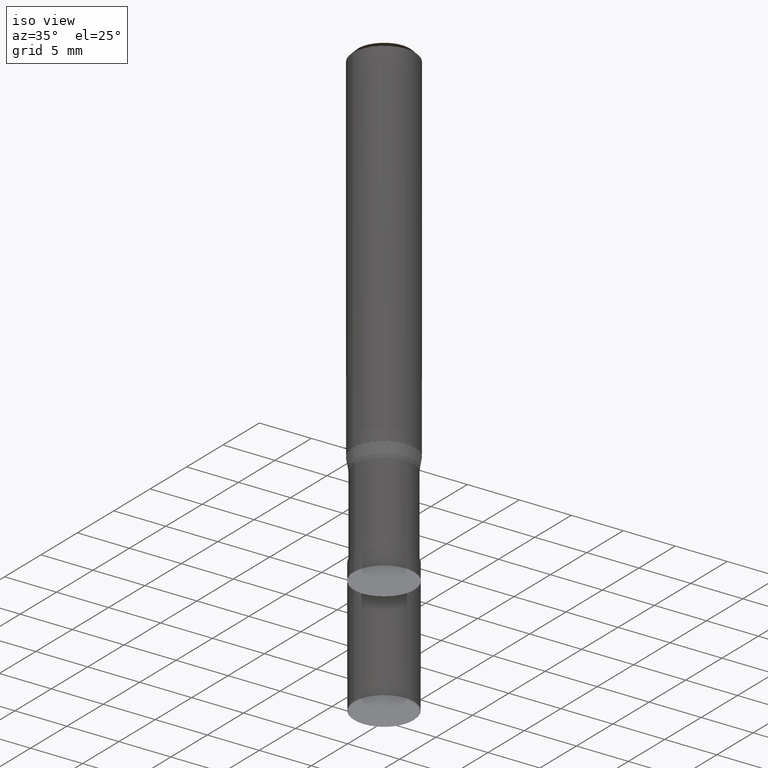
[diagram: clean part render]
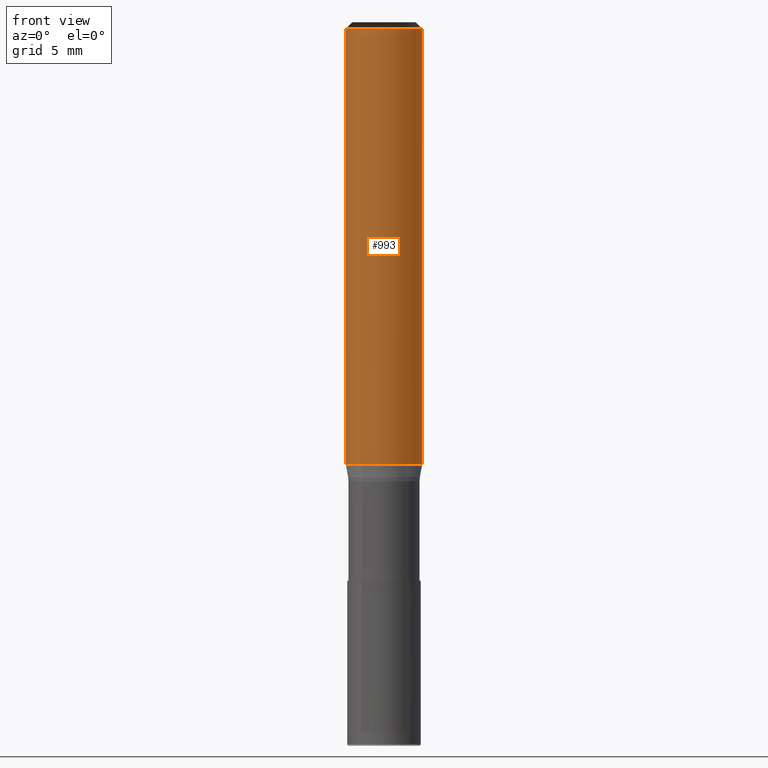
[diagram: tour spotlight — one face highlighted and labeled with its STEP entity id]
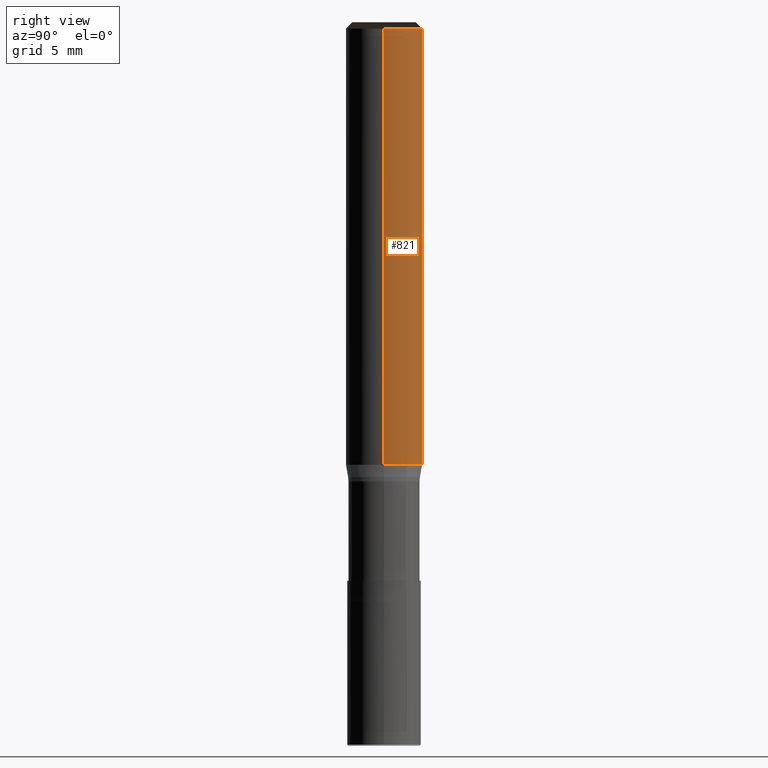
[diagram: tour spotlight — one face highlighted and labeled with its STEP entity id]
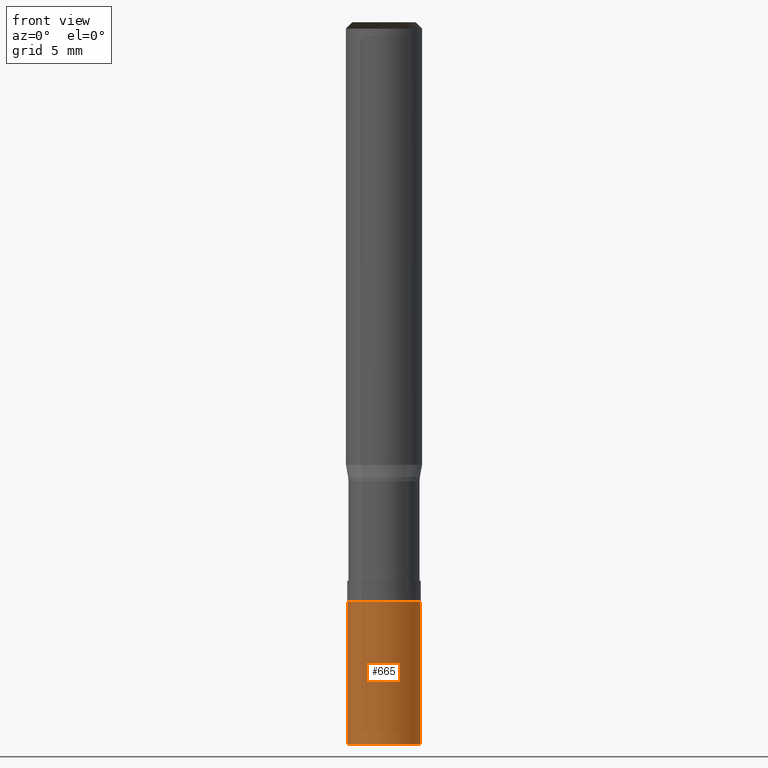
[diagram: tour spotlight — one face highlighted and labeled with its STEP entity id]
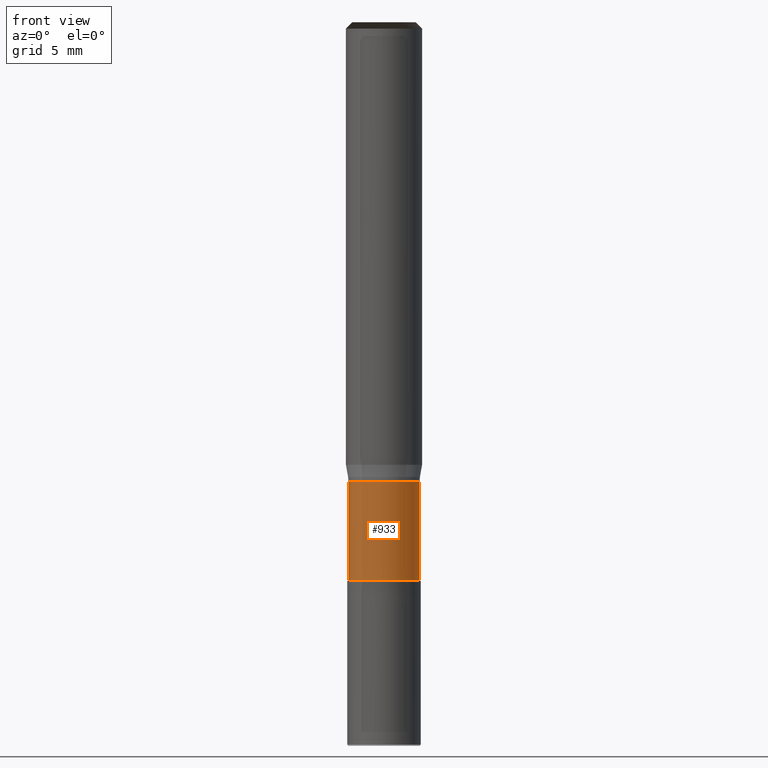
[diagram: tour spotlight — one face highlighted and labeled with its STEP entity id]
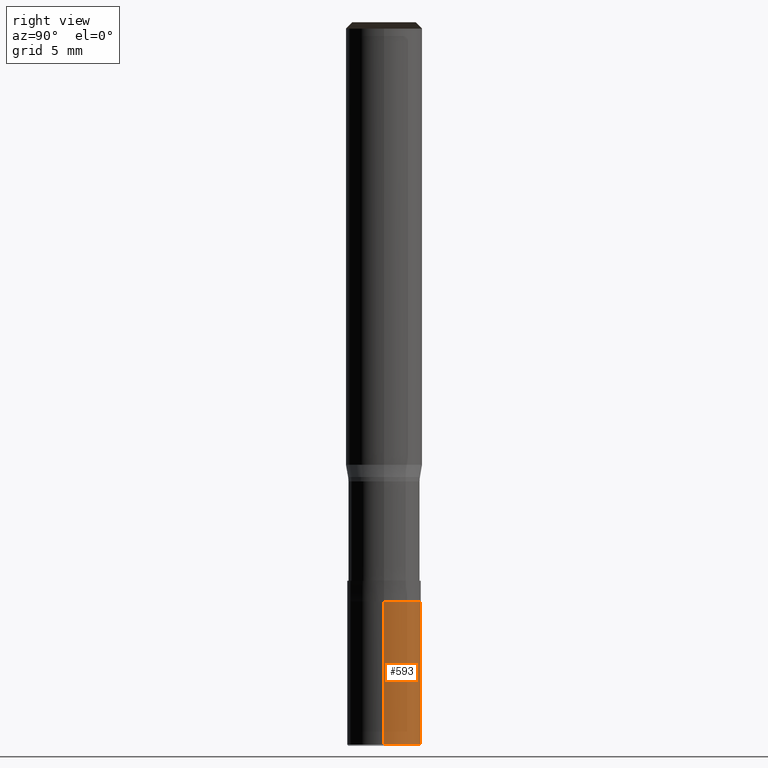
[diagram: tour spotlight — one face highlighted and labeled with its STEP entity id]
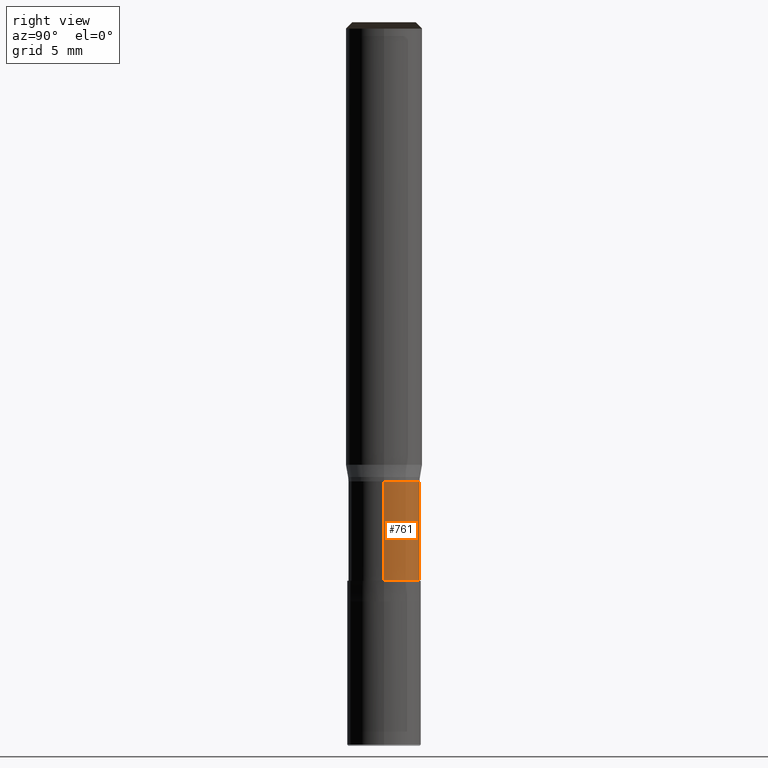
[diagram: tour spotlight — one face highlighted and labeled with its STEP entity id]
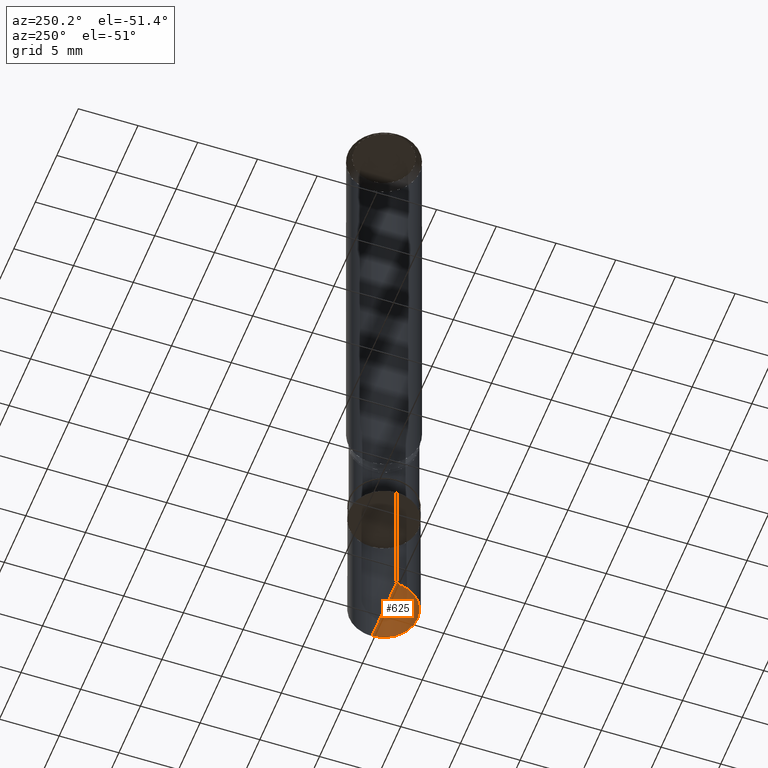
[diagram: tour spotlight — one face highlighted and labeled with its STEP entity id]
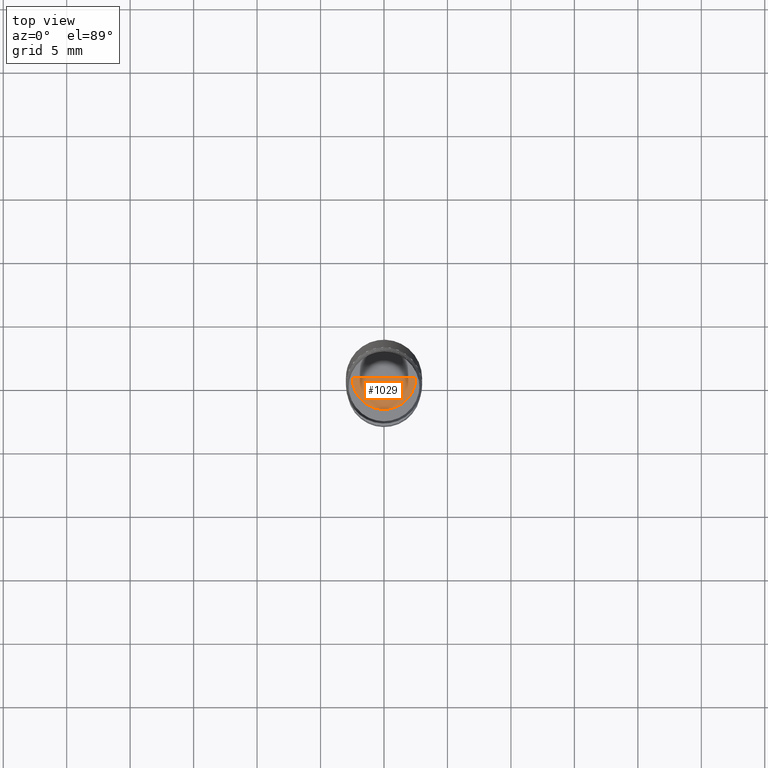
[diagram: tour spotlight — one face highlighted and labeled with its STEP entity id]
A machine part: a face-by-face anatomy tour. The part has 26 B-rep faces; the first image is the clean iso view, then the 8 largest visible faces are spotlighted one at a time (largest first), each with its STEP entity span.

Face 1 — front view, entity #993. In plain terms, the highlighted face is a freeform B-spline surface patch.
Definition (entity closure, byte-faithful):
#493=CARTESIAN_POINT('',(3.0,0.0,0.0));
#497=CARTESIAN_POINT('',(-3.0,0.0,0.0));
#498=CARTESIAN_POINT('',(3.0,0.0,34.36615));
#502=CARTESIAN_POINT('',(-3.0,0.0,34.36615));
#524=CARTESIAN_POINT('',(-3.0,-3.0,0.0));
#525=CARTESIAN_POINT('',(0.0,-3.0,0.0));
#526=CARTESIAN_POINT('',(3.0,-3.0,0.0));
#527=CARTESIAN_POINT('',(-3.0,-3.0,34.36615));
#528=CARTESIAN_POINT('',(0.0,-3.0,34.36615));
#529=CARTESIAN_POINT('',(3.0,-3.0,34.36615));
#974=(
BOUNDED_SURFACE()
B_SPLINE_SURFACE(1,2,(
(#497,#524,#525,#526,#493),
(#502,#527,#528,#529,#498)
), .UNSPECIFIED.,.F.,.F.,.F.)
B_SPLINE_SURFACE_WITH_KNOTS((2,2),(3,2,3),(
0.0,1.0),(
0.0,0.5,1.0), .UNSPECIFIED.)
GEOMETRIC_REPRESENTATION_ITEM()
RATIONAL_B_SPLINE_SURFACE(((1.0,0.707106781187,1.0,0.707106781187,1.0),
(1.0,0.707106781187,1.0,0.707106781187,1.0)
))
REPRESENTATION_ITEM('')
SURFACE()
);
#975=(
BOUNDED_CURVE()
B_SPLINE_CURVE(2,(#493,#526,#525,#524,#497),.UNSPECIFIED.,.F.,.F.)
B_SPLINE_CURVE_WITH_KNOTS((3,2,3),
(0.0,0.5,1.0),.UNSPECIFIED.)
CURVE()
GEOMETRIC_REPRESENTATION_ITEM()
RATIONAL_B_SPLINE_CURVE((1.0,0.707106781187,1.0,0.707106781187,1.0))
REPRESENTATION_ITEM('')
);
#976=(
BOUNDED_CURVE()
B_SPLINE_CURVE(1,(#497,#502),.UNSPECIFIED.,.F.,.F.)
B_SPLINE_CURVE_WITH_KNOTS((2,2),
(0.0,1.0),.UNSPECIFIED.)
CURVE()
GEOMETRIC_REPRESENTATION_ITEM()
RATIONAL_B_SPLINE_CURVE((1.0,1.0))
REPRESENTATION_ITEM('')
);
#977=(
BOUNDED_CURVE()
B_SPLINE_CURVE(2,(#502,#527,#528,#529,#498),.UNSPECIFIED.,.F.,.F.)
B_SPLINE_CURVE_WITH_KNOTS((3,2,3),
(0.0,0.5,1.0),.UNSPECIFIED.)
CURVE()
GEOMETRIC_REPRESENTATION_ITEM()
RATIONAL_B_SPLINE_CURVE((1.0,0.707106781187,1.0,0.707106781187,1.0))
REPRESENTATION_ITEM('')
);
#978=(
BOUNDED_CURVE()
B_SPLINE_CURVE(1,(#498,#493),.UNSPECIFIED.,.F.,.F.)
B_SPLINE_CURVE_WITH_KNOTS((2,2),
(0.0,1.0),.UNSPECIFIED.)
CURVE()
GEOMETRIC_REPRESENTATION_ITEM()
RATIONAL_B_SPLINE_CURVE((1.0,1.0))
REPRESENTATION_ITEM('')
);
#979=VERTEX_POINT('',#493);
#980=VERTEX_POINT('',#497);
#981=VERTEX_POINT('',#498);
#982=VERTEX_POINT('',#502);
#983=EDGE_CURVE('',#979,#980,#975,.T.);
#984=EDGE_CURVE('',#980,#982,#976,.T.);
#985=EDGE_CURVE('',#982,#981,#977,.T.);
#986=EDGE_CURVE('',#981,#979,#978,.T.);
#987=ORIENTED_EDGE('',*,*,#983,.T.);
#988=ORIENTED_EDGE('',*,*,#984,.T.);
#989=ORIENTED_EDGE('',*,*,#985,.T.);
#990=ORIENTED_EDGE('',*,*,#986,.T.);
#991=EDGE_LOOP('',(#987,#988,#989,#990));
#992=FACE_OUTER_BOUND('',#991,.T.);
#993=ADVANCED_FACE('',(#992),#974,.T.);

Face 2 — right view, entity #821. In plain terms, the highlighted face is a freeform B-spline surface patch.
Definition (entity closure, byte-faithful):
#493=CARTESIAN_POINT('',(3.0,0.0,0.0));
#494=CARTESIAN_POINT('',(3.0,3.0,0.0));
#495=CARTESIAN_POINT('',(0.0,3.0,0.0));
#496=CARTESIAN_POINT('',(-3.0,3.0,0.0));
#497=CARTESIAN_POINT('',(-3.0,0.0,0.0));
#498=CARTESIAN_POINT('',(3.0,0.0,34.36615));
#499=CARTESIAN_POINT('',(3.0,3.0,34.36615));
#500=CARTESIAN_POINT('',(0.0,3.0,34.36615));
#501=CARTESIAN_POINT('',(-3.0,3.0,34.36615));
#502=CARTESIAN_POINT('',(-3.0,0.0,34.36615));
#802=(
BOUNDED_SURFACE()
B_SPLINE_SURFACE(1,2,(
(#493,#494,#495,#496,#497),
(#498,#499,#500,#501,#502)
), .UNSPECIFIED.,.F.,.F.,.F.)
B_SPLINE_SURFACE_WITH_KNOTS((2,2),(3,2,3),(
0.0,1.0),(
0.0,0.5,1.0), .UNSPECIFIED.)
GEOMETRIC_REPRESENTATION_ITEM()
RATIONAL_B_SPLINE_SURFACE(((1.0,0.707106781187,1.0,0.707106781187,1.0),
(1.0,0.707106781187,1.0,0.707106781187,1.0)
))
REPRESENTATION_ITEM('')
SURFACE()
);
#803=(
BOUNDED_CURVE()
B_SPLINE_CURVE(2,(#497,#496,#495,#494,#493),.UNSPECIFIED.,.F.,.F.)
B_SPLINE_CURVE_WITH_KNOTS((3,2,3),
(0.0,0.5,1.0),.UNSPECIFIED.)
CURVE()
GEOMETRIC_REPRESENTATION_ITEM()
RATIONAL_B_SPLINE_CURVE((1.0,0.707106781187,1.0,0.707106781187,1.0))
REPRESENTATION_ITEM('')
);
#804=(
BOUNDED_CURVE()
B_SPLINE_CURVE(1,(#493,#498),.UNSPECIFIED.,.F.,.F.)
B_SPLINE_CURVE_WITH_KNOTS((2,2),
(0.0,1.0),.UNSPECIFIED.)
CURVE()
GEOMETRIC_REPRESENTATION_ITEM()
RATIONAL_B_SPLINE_CURVE((1.0,1.0))
REPRESENTATION_ITEM('')
);
#805=(
BOUNDED_CURVE()
B_SPLINE_CURVE(2,(#498,#499,#500,#501,#502),.UNSPECIFIED.,.F.,.F.)
B_SPLINE_CURVE_WITH_KNOTS((3,2,3),
(0.0,0.5,1.0),.UNSPECIFIED.)
CURVE()
GEOMETRIC_REPRESENTATION_ITEM()
RATIONAL_B_SPLINE_CURVE((1.0,0.707106781187,1.0,0.707106781187,1.0))
REPRESENTATION_ITEM('')
);
#806=(
BOUNDED_CURVE()
B_SPLINE_CURVE(1,(#502,#497),.UNSPECIFIED.,.F.,.F.)
B_SPLINE_CURVE_WITH_KNOTS((2,2),
(0.0,1.0),.UNSPECIFIED.)
CURVE()
GEOMETRIC_REPRESENTATION_ITEM()
RATIONAL_B_SPLINE_CURVE((1.0,1.0))
REPRESENTATION_ITEM('')
);
#807=VERTEX_POINT('',#493);
#808=VERTEX_POINT('',#497);
#809=VERTEX_POINT('',#498);
#810=VERTEX_POINT('',#502);
#811=EDGE_CURVE('',#808,#807,#803,.T.);
#812=EDGE_CURVE('',#807,#809,#804,.T.);
#813=EDGE_CURVE('',#809,#810,#805,.T.);
#814=EDGE_CURVE('',#810,#808,#806,.T.);
#815=ORIENTED_EDGE('',*,*,#811,.T.);
#816=ORIENTED_EDGE('',*,*,#812,.T.);
#817=ORIENTED_EDGE('',*,*,#813,.T.);
#818=ORIENTED_EDGE('',*,*,#814,.T.);
#819=EDGE_LOOP('',(#815,#816,#817,#818));
#820=FACE_OUTER_BOUND('',#819,.T.);
#821=ADVANCED_FACE('',(#820),#802,.T.);

Face 3 — front view, entity #665. In plain terms, the highlighted face is a freeform B-spline surface patch.
Definition (entity closure, byte-faithful):
#448=CARTESIAN_POINT('',(2.9,0.0,-22.034256363924));
#452=CARTESIAN_POINT('',(-2.9,0.0,-22.034256363924));
#453=CARTESIAN_POINT('',(2.9,0.0,-10.759256363924));
#457=CARTESIAN_POINT('',(-2.9,0.0,-10.759256363924));
#462=CARTESIAN_POINT('',(-2.9,-2.9,-22.034256363924));
#463=CARTESIAN_POINT('',(0.0,-2.9,-22.034256363924));
#464=CARTESIAN_POINT('',(2.9,-2.9,-22.034256363924));
#465=CARTESIAN_POINT('',(-2.9,-2.9,-10.759256363924));
#466=CARTESIAN_POINT('',(0.0,-2.9,-10.759256363924));
#467=CARTESIAN_POINT('',(2.9,-2.9,-10.759256363924));
#646=(
BOUNDED_SURFACE()
B_SPLINE_SURFACE(1,2,(
(#452,#462,#463,#464,#448),
(#457,#465,#466,#467,#453)
), .UNSPECIFIED.,.F.,.F.,.F.)
B_SPLINE_SURFACE_WITH_KNOTS((2,2),(3,2,3),(
0.0,1.0),(
0.0,0.5,1.0), .UNSPECIFIED.)
GEOMETRIC_REPRESENTATION_ITEM()
RATIONAL_B_SPLINE_SURFACE(((1.0,0.707106781187,1.0,0.707106781187,1.0),
(1.0,0.707106781187,1.0,0.707106781187,1.0)
))
REPRESENTATION_ITEM('')
SURFACE()
);
#647=(
BOUNDED_CURVE()
B_SPLINE_CURVE(2,(#448,#464,#463,#462,#452),.UNSPECIFIED.,.F.,.F.)
B_SPLINE_CURVE_WITH_KNOTS((3,2,3),
(0.0,0.5,1.0),.UNSPECIFIED.)
CURVE()
GEOMETRIC_REPRESENTATION_ITEM()
RATIONAL_B_SPLINE_CURVE((1.0,0.707106781187,1.0,0.707106781187,1.0))
REPRESENTATION_ITEM('')
);
#648=(
BOUNDED_CURVE()
B_SPLINE_CURVE(1,(#452,#457),.UNSPECIFIED.,.F.,.F.)
B_SPLINE_CURVE_WITH_KNOTS((2,2),
(0.0,1.0),.UNSPECIFIED.)
CURVE()
GEOMETRIC_REPRESENTATION_ITEM()
RATIONAL_B_SPLINE_CURVE((1.0,1.0))
REPRESENTATION_ITEM('')
);
#649=(
BOUNDED_CURVE()
B_SPLINE_CURVE(2,(#457,#465,#466,#467,#453),.UNSPECIFIED.,.F.,.F.)
B_SPLINE_CURVE_WITH_KNOTS((3,2,3),
(0.0,0.5,1.0),.UNSPECIFIED.)
CURVE()
GEOMETRIC_REPRESENTATION_ITEM()
RATIONAL_B_SPLINE_CURVE((1.0,0.707106781187,1.0,0.707106781187,1.0))
REPRESENTATION_ITEM('')
);
#650=(
BOUNDED_CURVE()
B_SPLINE_CURVE(1,(#453,#448),.UNSPECIFIED.,.F.,.F.)
B_SPLINE_CURVE_WITH_KNOTS((2,2),
(0.0,1.0),.UNSPECIFIED.)
CURVE()
GEOMETRIC_REPRESENTATION_ITEM()
RATIONAL_B_SPLINE_CURVE((1.0,1.0))
REPRESENTATION_ITEM('')
);
#651=VERTEX_POINT('',#448);
#652=VERTEX_POINT('',#452);
#653=VERTEX_POINT('',#453);
#654=VERTEX_POINT('',#457);
#655=EDGE_CURVE('',#651,#652,#647,.T.);
#656=EDGE_CURVE('',#652,#654,#648,.T.);
#657=EDGE_CURVE('',#654,#653,#649,.T.);
#658=EDGE_CURVE('',#653,#651,#650,.T.);
#659=ORIENTED_EDGE('',*,*,#655,.T.);
#660=ORIENTED_EDGE('',*,*,#656,.T.);
#661=ORIENTED_EDGE('',*,*,#657,.T.);
#662=ORIENTED_EDGE('',*,*,#658,.T.);
#663=EDGE_LOOP('',(#659,#660,#661,#662));
#664=FACE_OUTER_BOUND('',#663,.T.);
#665=ADVANCED_FACE('',(#664),#646,.T.);

Face 4 — front view, entity #933. In plain terms, the highlighted face is a freeform B-spline surface patch.
Definition (entity closure, byte-faithful):
#473=CARTESIAN_POINT('',(2.8,0.0,-9.134256363924));
#477=CARTESIAN_POINT('',(-2.8,0.0,-9.134256363924));
#478=CARTESIAN_POINT('',(2.8,0.0,-1.309233690975));
#482=CARTESIAN_POINT('',(-2.8,0.0,-1.309233690975));
#512=CARTESIAN_POINT('',(-2.8,-2.8,-9.134256363924));
#513=CARTESIAN_POINT('',(0.0,-2.8,-9.134256363924));
#514=CARTESIAN_POINT('',(2.8,-2.8,-9.134256363924));
#515=CARTESIAN_POINT('',(-2.8,-2.8,-1.309233690975));
#516=CARTESIAN_POINT('',(0.0,-2.8,-1.309233690975));
#517=CARTESIAN_POINT('',(2.8,-2.8,-1.309233690975));
#914=(
BOUNDED_SURFACE()
B_SPLINE_SURFACE(1,2,(
(#477,#512,#513,#514,#473),
(#482,#515,#516,#517,#478)
), .UNSPECIFIED.,.F.,.F.,.F.)
B_SPLINE_SURFACE_WITH_KNOTS((2,2),(3,2,3),(
0.0,1.0),(
0.0,0.5,1.0), .UNSPECIFIED.)
GEOMETRIC_REPRESENTATION_ITEM()
RATIONAL_B_SPLINE_SURFACE(((1.0,0.707106781187,1.0,0.707106781187,1.0),
(1.0,0.707106781187,1.0,0.707106781187,1.0)
))
REPRESENTATION_ITEM('')
SURFACE()
);
#915=(
BOUNDED_CURVE()
B_SPLINE_CURVE(2,(#473,#514,#513,#512,#477),.UNSPECIFIED.,.F.,.F.)
B_SPLINE_CURVE_WITH_KNOTS((3,2,3),
(0.0,0.5,1.0),.UNSPECIFIED.)
CURVE()
GEOMETRIC_REPRESENTATION_ITEM()
RATIONAL_B_SPLINE_CURVE((1.0,0.707106781187,1.0,0.707106781187,1.0))
REPRESENTATION_ITEM('')
);
#916=(
BOUNDED_CURVE()
B_SPLINE_CURVE(1,(#477,#482),.UNSPECIFIED.,.F.,.F.)
B_SPLINE_CURVE_WITH_KNOTS((2,2),
(0.0,1.0),.UNSPECIFIED.)
CURVE()
GEOMETRIC_REPRESENTATION_ITEM()
RATIONAL_B_SPLINE_CURVE((1.0,1.0))
REPRESENTATION_ITEM('')
);
#917=(
BOUNDED_CURVE()
B_SPLINE_CURVE(2,(#482,#515,#516,#517,#478),.UNSPECIFIED.,.F.,.F.)
B_SPLINE_CURVE_WITH_KNOTS((3,2,3),
(0.0,0.5,1.0),.UNSPECIFIED.)
CURVE()
GEOMETRIC_REPRESENTATION_ITEM()
RATIONAL_B_SPLINE_CURVE((1.0,0.707106781187,1.0,0.707106781187,1.0))
REPRESENTATION_ITEM('')
);
#918=(
BOUNDED_CURVE()
B_SPLINE_CURVE(1,(#478,#473),.UNSPECIFIED.,.F.,.F.)
B_SPLINE_CURVE_WITH_KNOTS((2,2),
(0.0,1.0),.UNSPECIFIED.)
CURVE()
GEOMETRIC_REPRESENTATION_ITEM()
RATIONAL_B_SPLINE_CURVE((1.0,1.0))
REPRESENTATION_ITEM('')
);
#919=VERTEX_POINT('',#473);
#920=VERTEX_POINT('',#477);
#921=VERTEX_POINT('',#478);
#922=VERTEX_POINT('',#482);
#923=EDGE_CURVE('',#919,#920,#915,.T.);
#924=EDGE_CURVE('',#920,#922,#916,.T.);
#925=EDGE_CURVE('',#922,#921,#917,.T.);
#926=EDGE_CURVE('',#921,#919,#918,.T.);
#927=ORIENTED_EDGE('',*,*,#923,.T.);
#928=ORIENTED_EDGE('',*,*,#924,.T.);
#929=ORIENTED_EDGE('',*,*,#925,.T.);
#930=ORIENTED_EDGE('',*,*,#926,.T.);
#931=EDGE_LOOP('',(#927,#928,#929,#930));
#932=FACE_OUTER_BOUND('',#931,.T.);
#933=ADVANCED_FACE('',(#932),#914,.T.);

Face 5 — right view, entity #593. In plain terms, the highlighted face is a freeform B-spline surface patch.
Definition (entity closure, byte-faithful):
#448=CARTESIAN_POINT('',(2.9,0.0,-22.034256363924));
#449=CARTESIAN_POINT('',(2.9,2.9,-22.034256363924));
#450=CARTESIAN_POINT('',(0.0,2.9,-22.034256363924));
#451=CARTESIAN_POINT('',(-2.9,2.9,-22.034256363924));
#452=CARTESIAN_POINT('',(-2.9,0.0,-22.034256363924));
#453=CARTESIAN_POINT('',(2.9,0.0,-10.759256363924));
#454=CARTESIAN_POINT('',(2.9,2.9,-10.759256363924));
#455=CARTESIAN_POINT('',(0.0,2.9,-10.759256363924));
#456=CARTESIAN_POINT('',(-2.9,2.9,-10.759256363924));
#457=CARTESIAN_POINT('',(-2.9,0.0,-10.759256363924));
#574=(
BOUNDED_SURFACE()
B_SPLINE_SURFACE(1,2,(
(#448,#449,#450,#451,#452),
(#453,#454,#455,#456,#457)
), .UNSPECIFIED.,.F.,.F.,.F.)
B_SPLINE_SURFACE_WITH_KNOTS((2,2),(3,2,3),(
0.0,1.0),(
0.0,0.5,1.0), .UNSPECIFIED.)
GEOMETRIC_REPRESENTATION_ITEM()
RATIONAL_B_SPLINE_SURFACE(((1.0,0.707106781187,1.0,0.707106781187,1.0),
(1.0,0.707106781187,1.0,0.707106781187,1.0)
))
REPRESENTATION_ITEM('')
SURFACE()
);
#575=(
BOUNDED_CURVE()
B_SPLINE_CURVE(2,(#452,#451,#450,#449,#448),.UNSPECIFIED.,.F.,.F.)
B_SPLINE_CURVE_WITH_KNOTS((3,2,3),
(0.0,0.5,1.0),.UNSPECIFIED.)
CURVE()
GEOMETRIC_REPRESENTATION_ITEM()
RATIONAL_B_SPLINE_CURVE((1.0,0.707106781187,1.0,0.707106781187,1.0))
REPRESENTATION_ITEM('')
);
#576=(
BOUNDED_CURVE()
B_SPLINE_CURVE(1,(#448,#453),.UNSPECIFIED.,.F.,.F.)
B_SPLINE_CURVE_WITH_KNOTS((2,2),
(0.0,1.0),.UNSPECIFIED.)
CURVE()
GEOMETRIC_REPRESENTATION_ITEM()
RATIONAL_B_SPLINE_CURVE((1.0,1.0))
REPRESENTATION_ITEM('')
);
#577=(
BOUNDED_CURVE()
B_SPLINE_CURVE(2,(#453,#454,#455,#456,#457),.UNSPECIFIED.,.F.,.F.)
B_SPLINE_CURVE_WITH_KNOTS((3,2,3),
(0.0,0.5,1.0),.UNSPECIFIED.)
CURVE()
GEOMETRIC_REPRESENTATION_ITEM()
RATIONAL_B_SPLINE_CURVE((1.0,0.707106781187,1.0,0.707106781187,1.0))
REPRESENTATION_ITEM('')
);
#578=(
BOUNDED_CURVE()
B_SPLINE_CURVE(1,(#457,#452),.UNSPECIFIED.,.F.,.F.)
B_SPLINE_CURVE_WITH_KNOTS((2,2),
(0.0,1.0),.UNSPECIFIED.)
CURVE()
GEOMETRIC_REPRESENTATION_ITEM()
RATIONAL_B_SPLINE_CURVE((1.0,1.0))
REPRESENTATION_ITEM('')
);
#579=VERTEX_POINT('',#448);
#580=VERTEX_POINT('',#452);
#581=VERTEX_POINT('',#453);
#582=VERTEX_POINT('',#457);
#583=EDGE_CURVE('',#580,#579,#575,.T.);
#584=EDGE_CURVE('',#579,#581,#576,.T.);
#585=EDGE_CURVE('',#581,#582,#577,.T.);
#586=EDGE_CURVE('',#582,#580,#578,.T.);
#587=ORIENTED_EDGE('',*,*,#583,.T.);
#588=ORIENTED_EDGE('',*,*,#584,.T.);
#589=ORIENTED_EDGE('',*,*,#585,.T.);
#590=ORIENTED_EDGE('',*,*,#586,.T.);
#591=EDGE_LOOP('',(#587,#588,#589,#590));
#592=FACE_OUTER_BOUND('',#591,.T.);
#593=ADVANCED_FACE('',(#592),#574,.T.);

Face 6 — right view, entity #761. In plain terms, the highlighted face is a freeform B-spline surface patch.
Definition (entity closure, byte-faithful):
#473=CARTESIAN_POINT('',(2.8,0.0,-9.134256363924));
#474=CARTESIAN_POINT('',(2.8,2.8,-9.134256363924));
#475=CARTESIAN_POINT('',(0.0,2.8,-9.134256363924));
#476=CARTESIAN_POINT('',(-2.8,2.8,-9.134256363924));
#477=CARTESIAN_POINT('',(-2.8,0.0,-9.134256363924));
#478=CARTESIAN_POINT('',(2.8,0.0,-1.309233690975));
#479=CARTESIAN_POINT('',(2.8,2.8,-1.309233690975));
#480=CARTESIAN_POINT('',(0.0,2.8,-1.309233690975));
#481=CARTESIAN_POINT('',(-2.8,2.8,-1.309233690975));
#482=CARTESIAN_POINT('',(-2.8,0.0,-1.309233690975));
#742=(
BOUNDED_SURFACE()
B_SPLINE_SURFACE(1,2,(
(#473,#474,#475,#476,#477),
(#478,#479,#480,#481,#482)
), .UNSPECIFIED.,.F.,.F.,.F.)
B_SPLINE_SURFACE_WITH_KNOTS((2,2),(3,2,3),(
0.0,1.0),(
0.0,0.5,1.0), .UNSPECIFIED.)
GEOMETRIC_REPRESENTATION_ITEM()
RATIONAL_B_SPLINE_SURFACE(((1.0,0.707106781187,1.0,0.707106781187,1.0),
(1.0,0.707106781187,1.0,0.707106781187,1.0)
))
REPRESENTATION_ITEM('')
SURFACE()
);
#743=(
BOUNDED_CURVE()
B_SPLINE_CURVE(2,(#477,#476,#475,#474,#473),.UNSPECIFIED.,.F.,.F.)
B_SPLINE_CURVE_WITH_KNOTS((3,2,3),
(0.0,0.5,1.0),.UNSPECIFIED.)
CURVE()
GEOMETRIC_REPRESENTATION_ITEM()
RATIONAL_B_SPLINE_CURVE((1.0,0.707106781187,1.0,0.707106781187,1.0))
REPRESENTATION_ITEM('')
);
#744=(
BOUNDED_CURVE()
B_SPLINE_CURVE(1,(#473,#478),.UNSPECIFIED.,.F.,.F.)
B_SPLINE_CURVE_WITH_KNOTS((2,2),
(0.0,1.0),.UNSPECIFIED.)
CURVE()
GEOMETRIC_REPRESENTATION_ITEM()
RATIONAL_B_SPLINE_CURVE((1.0,1.0))
REPRESENTATION_ITEM('')
);
#745=(
BOUNDED_CURVE()
B_SPLINE_CURVE(2,(#478,#479,#480,#481,#482),.UNSPECIFIED.,.F.,.F.)
B_SPLINE_CURVE_WITH_KNOTS((3,2,3),
(0.0,0.5,1.0),.UNSPECIFIED.)
CURVE()
GEOMETRIC_REPRESENTATION_ITEM()
RATIONAL_B_SPLINE_CURVE((1.0,0.707106781187,1.0,0.707106781187,1.0))
REPRESENTATION_ITEM('')
);
#746=(
BOUNDED_CURVE()
B_SPLINE_CURVE(1,(#482,#477),.UNSPECIFIED.,.F.,.F.)
B_SPLINE_CURVE_WITH_KNOTS((2,2),
(0.0,1.0),.UNSPECIFIED.)
CURVE()
GEOMETRIC_REPRESENTATION_ITEM()
RATIONAL_B_SPLINE_CURVE((1.0,1.0))
REPRESENTATION_ITEM('')
);
#747=VERTEX_POINT('',#473);
#748=VERTEX_POINT('',#477);
#749=VERTEX_POINT('',#478);
#750=VERTEX_POINT('',#482);
#751=EDGE_CURVE('',#748,#747,#743,.T.);
#752=EDGE_CURVE('',#747,#749,#744,.T.);
#753=EDGE_CURVE('',#749,#750,#745,.T.);
#754=EDGE_CURVE('',#750,#748,#746,.T.);
#755=ORIENTED_EDGE('',*,*,#751,.T.);
#756=ORIENTED_EDGE('',*,*,#752,.T.);
#757=ORIENTED_EDGE('',*,*,#753,.T.);
#758=ORIENTED_EDGE('',*,*,#754,.T.);
#759=EDGE_LOOP('',(#755,#756,#757,#758));
#760=FACE_OUTER_BOUND('',#759,.T.);
#761=ADVANCED_FACE('',(#760),#742,.T.);

Face 7 — auxiliary view, entity #625. In plain terms, the highlighted face is a freeform B-spline surface patch.
Definition (entity closure, byte-faithful):
#442=CARTESIAN_POINT('',(0.0,0.0,-22.134256363924));
#443=CARTESIAN_POINT('',(2.8,0.0,-22.134256363924));
#447=CARTESIAN_POINT('',(-2.8,0.0,-22.134256363924));
#459=CARTESIAN_POINT('',(-2.8,-2.8,-22.134256363924));
#460=CARTESIAN_POINT('',(0.0,-2.8,-22.134256363924));
#461=CARTESIAN_POINT('',(2.8,-2.8,-22.134256363924));
#610=(
BOUNDED_SURFACE()
B_SPLINE_SURFACE(1,2,(
(#442,#442,#442,#442,#442),
(#447,#459,#460,#461,#443)
), .UNSPECIFIED.,.F.,.F.,.F.)
B_SPLINE_SURFACE_WITH_KNOTS((2,2),(3,2,3),(
0.0,1.0),(
0.0,0.5,1.0), .UNSPECIFIED.)
GEOMETRIC_REPRESENTATION_ITEM()
RATIONAL_B_SPLINE_SURFACE(((1.0,0.707106781187,1.0,0.707106781187,1.0),
(1.0,0.707106781187,1.0,0.707106781187,1.0)
))
REPRESENTATION_ITEM('')
SURFACE()
);
#611=(
BOUNDED_CURVE()
B_SPLINE_CURVE(1,(#443,#442),.UNSPECIFIED.,.F.,.F.)
B_SPLINE_CURVE_WITH_KNOTS((2,2),
(0.0,1.0),.UNSPECIFIED.)
CURVE()
GEOMETRIC_REPRESENTATION_ITEM()
RATIONAL_B_SPLINE_CURVE((1.0,1.0))
REPRESENTATION_ITEM('')
);
#612=(
BOUNDED_CURVE()
B_SPLINE_CURVE(1,(#442,#447),.UNSPECIFIED.,.F.,.F.)
B_SPLINE_CURVE_WITH_KNOTS((2,2),
(0.0,1.0),.UNSPECIFIED.)
CURVE()
GEOMETRIC_REPRESENTATION_ITEM()
RATIONAL_B_SPLINE_CURVE((1.0,1.0))
REPRESENTATION_ITEM('')
);
#613=(
BOUNDED_CURVE()
B_SPLINE_CURVE(2,(#447,#459,#460,#461,#443),.UNSPECIFIED.,.F.,.F.)
B_SPLINE_CURVE_WITH_KNOTS((3,2,3),
(0.0,0.5,1.0),.UNSPECIFIED.)
CURVE()
GEOMETRIC_REPRESENTATION_ITEM()
RATIONAL_B_SPLINE_CURVE((1.0,0.707106781187,1.0,0.707106781187,1.0))
REPRESENTATION_ITEM('')
);
#614=VERTEX_POINT('',#442);
#615=VERTEX_POINT('',#443);
#616=VERTEX_POINT('',#447);
#617=EDGE_CURVE('',#615,#614,#611,.T.);
#618=EDGE_CURVE('',#614,#616,#612,.T.);
#619=EDGE_CURVE('',#616,#615,#613,.T.);
#620=ORIENTED_EDGE('',*,*,#617,.T.);
#621=ORIENTED_EDGE('',*,*,#618,.T.);
#622=ORIENTED_EDGE('',*,*,#619,.T.);
#623=EDGE_LOOP('',(#620,#621,#622));
#624=FACE_OUTER_BOUND('',#623,.T.);
#625=ADVANCED_FACE('',(#624),#610,.T.);

Face 8 — top view, entity #1029. In plain terms, the highlighted face is a freeform B-spline surface patch.
Definition (entity closure, byte-faithful):
#503=CARTESIAN_POINT('',(2.5,0.0,34.86615));
#507=CARTESIAN_POINT('',(-2.5,0.0,34.86615));
#508=CARTESIAN_POINT('',(0.0,0.0,34.86615));
#530=CARTESIAN_POINT('',(-2.5,-2.5,34.86615));
#531=CARTESIAN_POINT('',(0.0,-2.5,34.86615));
#532=CARTESIAN_POINT('',(2.5,-2.5,34.86615));
#1014=(
BOUNDED_SURFACE()
B_SPLINE_SURFACE(1,2,(
(#507,#530,#531,#532,#503),
(#508,#508,#508,#508,#508)
), .UNSPECIFIED.,.F.,.F.,.F.)
B_SPLINE_SURFACE_WITH_KNOTS((2,2),(3,2,3),(
0.0,1.0),(
0.0,0.5,1.0), .UNSPECIFIED.)
GEOMETRIC_REPRESENTATION_ITEM()
RATIONAL_B_SPLINE_SURFACE(((1.0,0.707106781187,1.0,0.707106781187,1.0),
(1.0,0.707106781187,1.0,0.707106781187,1.0)
))
REPRESENTATION_ITEM('')
SURFACE()
);
#1015=(
BOUNDED_CURVE()
B_SPLINE_CURVE(2,(#503,#532,#531,#530,#507),.UNSPECIFIED.,.F.,.F.)
B_SPLINE_CURVE_WITH_KNOTS((3,2,3),
(0.0,0.5,1.0),.UNSPECIFIED.)
CURVE()
GEOMETRIC_REPRESENTATION_ITEM()
RATIONAL_B_SPLINE_CURVE((1.0,0.707106781187,1.0,0.707106781187,1.0))
REPRESENTATION_ITEM('')
);
#1016=(
BOUNDED_CURVE()
B_SPLINE_CURVE(1,(#507,#508),.UNSPECIFIED.,.F.,.F.)
B_SPLINE_CURVE_WITH_KNOTS((2,2),
(0.0,1.0),.UNSPECIFIED.)
CURVE()
GEOMETRIC_REPRESENTATION_ITEM()
RATIONAL_B_SPLINE_CURVE((1.0,1.0))
REPRESENTATION_ITEM('')
);
#1017=(
BOUNDED_CURVE()
B_SPLINE_CURVE(1,(#508,#503),.UNSPECIFIED.,.F.,.F.)
B_SPLINE_CURVE_WITH_KNOTS((2,2),
(0.0,1.0),.UNSPECIFIED.)
CURVE()
GEOMETRIC_REPRESENTATION_ITEM()
RATIONAL_B_SPLINE_CURVE((1.0,1.0))
REPRESENTATION_ITEM('')
);
#1018=VERTEX_POINT('',#503);
#1019=VERTEX_POINT('',#507);
#1020=VERTEX_POINT('',#508);
#1021=EDGE_CURVE('',#1018,#1019,#1015,.T.);
#1022=EDGE_CURVE('',#1019,#1020,#1016,.T.);
#1023=EDGE_CURVE('',#1020,#1018,#1017,.T.);
#1024=ORIENTED_EDGE('',*,*,#1021,.T.);
#1025=ORIENTED_EDGE('',*,*,#1022,.T.);
#1026=ORIENTED_EDGE('',*,*,#1023,.T.);
#1027=EDGE_LOOP('',(#1024,#1025,#1026));
#1028=FACE_OUTER_BOUND('',#1027,.T.);
#1029=ADVANCED_FACE('',(#1028),#1014,.T.);